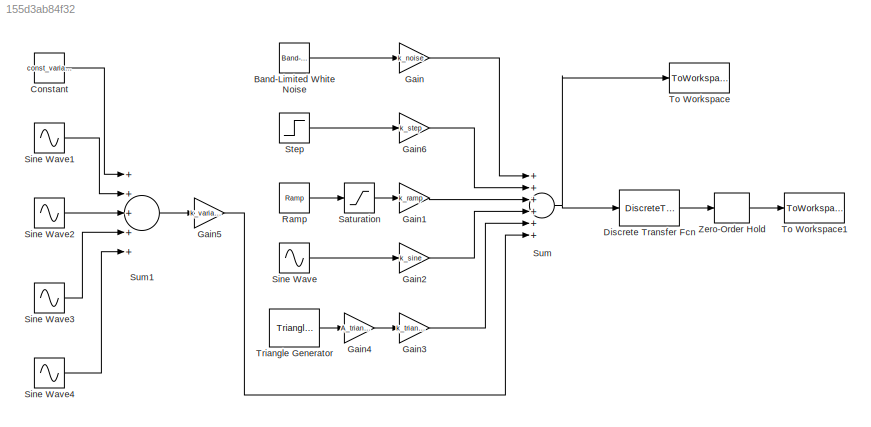
MODEL slx_155d3ab84f32
KIND model
CONFIG AbsTol = auto
CONFIG FixedStep = auto
CONFIG MaxStep = auto
CONFIG MinStep = auto
CONFIG RelTol = 1e-3
CONFIG SampleTimeConstraint = Unconstrained
CONFIG Solver = FixedStepAuto
CONFIG SolverMode = Auto
CONFIG SolverName = FixedStepAuto
CONFIG StartTime = 0.0
CONFIG StopTime = 10.0
BLOCK [Reference] Band-Limited White Noise  REF=simulink/Sources/Band-Limited
White Noise
  Cov = A_noise
  Ports = [0, 1]
  SourceBlock = simulink/Sources/Band-Limited\nWhite Noise
  SourceType = Band-Limited White Noise.
  Ts = Ts
  VectorParams1D = on
  seed = [23341]
BLOCK [Constant] Constant
  SampleTime = Ts
  Value = const_variant
BLOCK [DiscreteTransferFcn] Discrete Transfer Fcn
  Denominator = den
  InputPortMap = u0
  Numerator = num
  Ports = [1, 1]
  SampleTime = Ts
BLOCK [Gain] Gain
  Gain = k_noise
  OutDataTypeStr = Inherit: Inherit via internal rule
  ParamDataTypeStr = Inherit: Inherit via internal rule
  SaturateOnIntegerOverflow = off
BLOCK [Gain] Gain1
  Gain = k_ramp
  OutDataTypeStr = Inherit: Inherit via internal rule
  ParamDataTypeStr = Inherit: Inherit via internal rule
  SaturateOnIntegerOverflow = off
BLOCK [Gain] Gain2
  Gain = k_sine
  OutDataTypeStr = Inherit: Inherit via internal rule
  ParamDataTypeStr = Inherit: Inherit via internal rule
  SaturateOnIntegerOverflow = off
BLOCK [Gain] Gain3
  Gain = k_triangle
  OutDataTypeStr = Inherit: Inherit via internal rule
  ParamDataTypeStr = Inherit: Inherit via internal rule
  SaturateOnIntegerOverflow = off
BLOCK [Gain] Gain4
  Gain = A_triangle
  OutDataTypeStr = Inherit: Inherit via internal rule
  ParamDataTypeStr = Inherit: Inherit via internal rule
  SaturateOnIntegerOverflow = off
BLOCK [Gain] Gain5
  Gain = k_variant
  OutDataTypeStr = Inherit: Inherit via internal rule
  ParamDataTypeStr = Inherit: Inherit via internal rule
  SaturateOnIntegerOverflow = off
BLOCK [Gain] Gain6
  Gain = k_step
  OutDataTypeStr = Inherit: Inherit via internal rule
  ParamDataTypeStr = Inherit: Inherit via internal rule
  SaturateOnIntegerOverflow = off
BLOCK [Reference] Ramp  REF=simulink/Sources/Ramp
  Ports = [0, 1]
  SourceBlock = simulink/Sources/Ramp
  SourceType = Ramp
  VectorParams1D = on
  X0 = 0
  slope = slope_ramp
  start = 0
BLOCK [Saturate] Saturation
  InputPortMap = u0
  LowerLimit = 0
  Ports = [1, 1]
  UpperLimit = max_ramp
BLOCK [Sin] Sine Wave
  Amplitude = A_sine
  Frequency = f_sine
  Phase = pi/2
  Ports = [0, 1]
  SampleTime = Ts
BLOCK [Sin] Sine Wave1
  Amplitude = 0.5*A_variant
  Ports = [0, 1]
  SampleTime = Ts
BLOCK [Sin] Sine Wave2
  Amplitude = 0.2*A_variant
  Frequency = 2.5
  Ports = [0, 1]
  SampleTime = Ts
BLOCK [Sin] Sine Wave3
  Amplitude = 0.25*A_variant
  Frequency = 0.2
  Ports = [0, 1]
  SampleTime = Ts
BLOCK [Sin] Sine Wave4
  Amplitude = 0.05*A_variant
  Frequency = 2
  Ports = [0, 1]
  SampleTime = Ts
BLOCK [Step] Step
  After = A_step
  SampleTime = Ts
  Time = 0
BLOCK [Sum] Sum
  InputSameDT = off
  Inputs = ++++++
  OutDataTypeStr = Inherit: Inherit via internal rule
  Ports = [6, 1]
  SaturateOnIntegerOverflow = off
BLOCK [Sum] Sum1
  InputSameDT = off
  Inputs = +++++
  OutDataTypeStr = Inherit: Inherit via internal rule
  Ports = [5, 1]
  SaturateOnIntegerOverflow = off
BLOCK [ToWorkspace] To Workspace
  FixptAsFi = on
  MaxDataPoints = inf
  Ports = [1]
  SampleTime = -1
  SaveFormat = Structure With Time
  VariableName = u
BLOCK [ToWorkspace] To Workspace1
  FixptAsFi = on
  MaxDataPoints = inf
  Ports = [1]
  SampleTime = -1
  SaveFormat = Structure With Time
  VariableName = y
BLOCK [Reference] Triangle Generator  REF=powerlib_meascontrol/Pulse & Signal
Generators/Triangle
Generator
  Freq = f_triangle
  Phase = 180
  Ports = [0, 1]
  SourceBlock = powerlib_meascontrol/Pulse & Signal\nGenerators/Triangle\nGenerator
  SourceType = Triangle Generator
  Ts = Ts
BLOCK [ZeroOrderHold] Zero-Order Hold
  SampleTime = Ts
LINE Band-Limited White Noise:1 -> Gain:1
LINE Constant:1 -> Sum1:1
LINE Discrete Transfer Fcn:1 -> Zero-Order Hold:1
LINE Gain1:1 -> Sum:3
LINE Gain2:1 -> Sum:4
LINE Gain3:1 -> Sum:5
LINE Gain4:1 -> Gain3:1
LINE Gain5:1 -> Sum:6
LINE Gain6:1 -> Sum:2
LINE Gain:1 -> Sum:1
LINE Ramp:1 -> Saturation:1
LINE Saturation:1 -> Gain1:1
LINE Sine Wave1:1 -> Sum1:2
LINE Sine Wave2:1 -> Sum1:3
LINE Sine Wave3:1 -> Sum1:4
LINE Sine Wave4:1 -> Sum1:5
LINE Sine Wave:1 -> Gain2:1
LINE Step:1 -> Gain6:1
LINE Sum1:1 -> Gain5:1
NET Sum:1 -> Discrete Transfer Fcn:1, To Workspace:1
LINE Triangle Generator:1 -> Gain4:1
LINE Zero-Order Hold:1 -> To Workspace1:1
note: NET lines group one-source signal fan-out (src -> all destinations, sorted); 1:1 wires keep LINE
